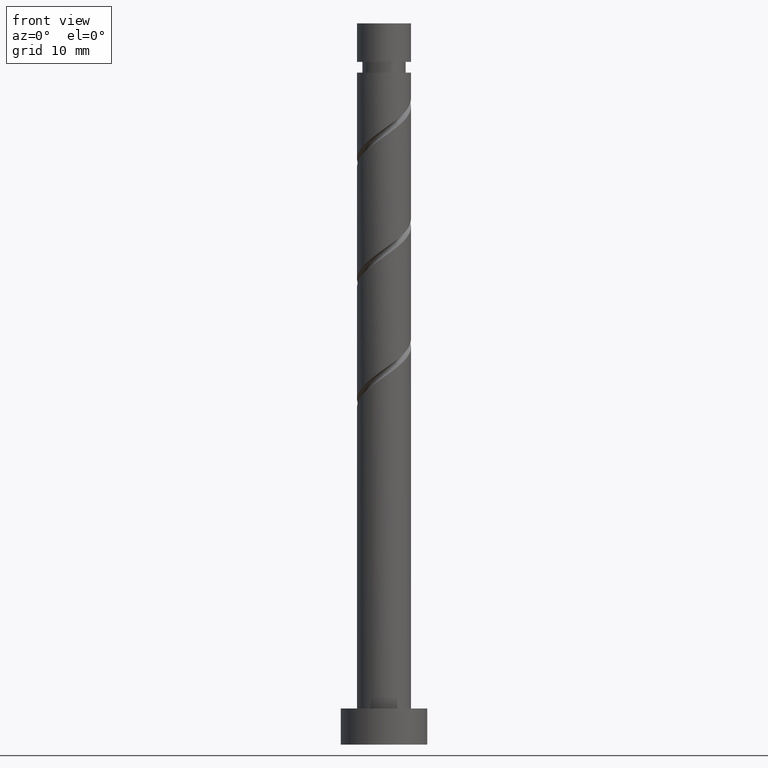
[diagram: clean part render]
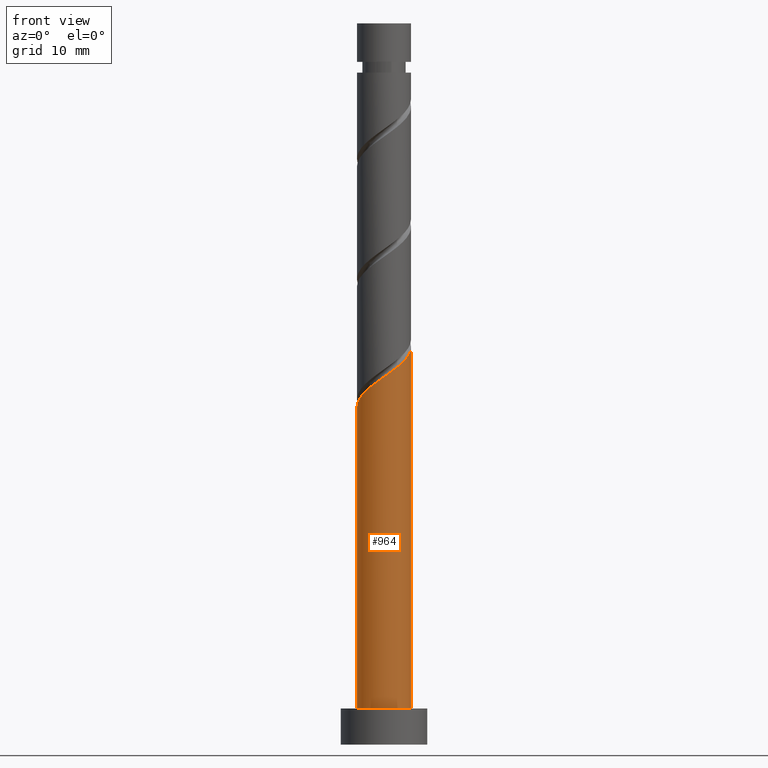
[diagram: same view with one face highlighted and labeled with its STEP entity id]
A machine part, front view. The second image highlights one B-rep face of the part: STEP entity #964.
In plain terms, the highlighted cylindrical surface (edge-blend (fillet) strip) has radius 3.75 mm, axis along (-0, -0, -1).
Its self-contained STEP definition (entity closure, byte-faithful):
#31 = CARTESIAN_POINT ( 'NONE',  ( 0.09823892372635467662, -3.806582347970903779, 51.04277048853528242 ) ) ;
#36 = DIRECTION ( 'NONE',  ( 0.000000000000000000, 0.000000000000000000, 1.000000000000000000 ) ) ;
#47 = CARTESIAN_POINT ( 'NONE',  ( -2.371568586908626930, -2.979158017898145605, 49.19091863668342768 ) ) ;
#62 = CARTESIAN_POINT ( 'NONE',  ( 3.750000000000000000, 4.592425496802573972E-16, 5.000000000000000000 ) ) ;
#148 = CARTESIAN_POINT ( 'NONE',  ( -2.809523069992834632, -2.483763297735530617, 48.72795567372047287 ) ) ;
#151 = EDGE_LOOP ( 'NONE', ( #860, #265, #1085, #873 ) ) ;
#155 = CARTESIAN_POINT ( 'NONE',  ( -3.247477553077039669, -1.988368577572917850, 48.26499271075751807 ) ) ;
#160 = CARTESIAN_POINT ( 'NONE',  ( -3.750000000000004441, -0.04838127874508439674, 46.84222927044185525 ) ) ;
#252 = CARTESIAN_POINT ( 'NONE',  ( 3.345716476803395345, -1.818213770397985929, 53.82054826631306810 ) ) ;
#259 = CARTESIAN_POINT ( 'NONE',  ( 0.000000000000000000, 0.000000000000000000, 5.000000000000000000 ) ) ;
#265 = ORIENTED_EDGE ( 'NONE', *, *, #711, .F. ) ;
#274 = CIRCLE ( 'NONE', #1332, 3.750000000000000000 ) ;
#300 = CARTESIAN_POINT ( 'NONE',  ( 0.000000000000000000, 0.000000000000000000, 100.0000000000000000 ) ) ;
#320 = VERTEX_POINT ( 'NONE', #62 ) ;
#365 = EDGE_CURVE ( 'NONE', #1029, #1429, #1469, .T. ) ;
#378 = CARTESIAN_POINT ( 'NONE',  ( 3.555763647822799189, -1.191236702264475644, 54.28351122927602290 ) ) ;
#410 = CYLINDRICAL_SURFACE ( 'NONE', #650, 3.750000000000000000 ) ;
#420 = DIRECTION ( 'NONE',  ( -0.000000000000000000, -0.000000000000000000, -1.000000000000000000 ) ) ;
#465 = LINE ( 'NONE', #880, #985 ) ;
#496 = CARTESIAN_POINT ( 'NONE',  ( 1.958160791039665671, -3.198141072003383378, 52.43165937742417526 ) ) ;
#504 = CARTESIAN_POINT ( 'NONE',  ( -3.748751808761160209, -0.09674645373329007758, 46.87610382186861813 ) ) ;
#523 = FACE_OUTER_BOUND ( 'NONE', #151, .T. ) ;
#605 = CARTESIAN_POINT ( 'NONE',  ( 3.750000000000004885, -2.599380179159503429E-15, 55.14154522984282636 ) ) ;
#650 = AXIS2_PLACEMENT_3D ( 'NONE', #300, #845, #1185 ) ;
#705 = CARTESIAN_POINT ( 'NONE',  ( 0.7462405778299654457, -3.675000000000005596, 51.50573345149824434 ) ) ;
#711 = EDGE_CURVE ( 'NONE', #1029, #1171, #1359, .T. ) ;
#717 = CARTESIAN_POINT ( 'NONE',  ( -3.731692798680119161, -0.7577525415975426837, 47.33906678483158004 ) ) ;
#778 = EDGE_CURVE ( 'NONE', #1429, #320, #274, .T. ) ;
#810 = CARTESIAN_POINT ( 'NONE',  ( 2.522079350145755239, -2.852864491977661565, 52.89462234038713007 ) ) ;
#827 = CARTESIAN_POINT ( 'NONE',  ( 1.394242231933574105, -3.543417652029107856, 51.96869641446121335 ) ) ;
#845 = DIRECTION ( 'NONE',  ( -0.000000000000000000, -0.000000000000000000, -1.000000000000000000 ) ) ;
#860 = ORIENTED_EDGE ( 'NONE', *, *, #1060, .F. ) ;
#873 = ORIENTED_EDGE ( 'NONE', *, *, #778, .T. ) ;
#880 = CARTESIAN_POINT ( 'NONE',  ( 3.750000000000000000, 4.592425496802573972E-16, 100.0000000000000000 ) ) ;
#883 = CARTESIAN_POINT ( 'NONE',  ( -3.750000000000000000, 0.000000000000000000, 100.0000000000000000 ) ) ;
#884 = VECTOR ( 'NONE', #420, 1000.000000000000000 ) ;
#950 = CARTESIAN_POINT ( 'NONE',  ( -3.750000000000004885, 2.554563279518822893E-15, 46.80821189650949066 ) ) ;
#956 = CARTESIAN_POINT ( 'NONE',  ( 2.933897913474575514, -2.335539131187822193, 53.35758530335009908 ) ) ;
#964 = ADVANCED_FACE ( 'NONE', ( #523 ), #410, .T. ) ;
#985 = VECTOR ( 'NONE', #1476, 1000.000000000000000 ) ;
#1004 = CARTESIAN_POINT ( 'NONE',  ( -3.750000000000004885, 2.554563279518822893E-15, 46.80821189650949066 ) ) ;
#1010 = CARTESIAN_POINT ( 'NONE',  ( -3.750000000000000000, 0.000000000000000000, 5.000000000000000000 ) ) ;
#1029 = VERTEX_POINT ( 'NONE', #1004 ) ;
#1052 = CARTESIAN_POINT ( 'NONE',  ( 3.750000000000004885, -0.6114538943267161519, 54.71162571747719738 ) ) ;
#1060 = EDGE_CURVE ( 'NONE', #1171, #320, #465, .T. ) ;
#1064 = CARTESIAN_POINT ( 'NONE',  ( -3.489585175878578749, -1.373060559585229878, 47.80202974779454195 ) ) ;
#1085 = ORIENTED_EDGE ( 'NONE', *, *, #365, .T. ) ;
#1169 = CARTESIAN_POINT ( 'NONE',  ( -0.5556872624040036790, -3.708599690773053403, 50.57980752557233473 ) ) ;
#1171 = VERTEX_POINT ( 'NONE', #1398 ) ;
#1185 = DIRECTION ( 'NONE',  ( -1.000000000000000000, 0.000000000000000000, 0.000000000000000000 ) ) ;
#1300 = CARTESIAN_POINT ( 'NONE',  ( -1.209613448534362590, -3.610617033575203472, 50.11684456260935150 ) ) ;
#1332 = AXIS2_PLACEMENT_3D ( 'NONE', #259, #36, #1416 ) ;
#1359 =( BOUNDED_CURVE ( )  B_SPLINE_CURVE ( 2, ( #950, #160, #504, #717, #1064, #155, #148, #47, #1406, #1300, #1169, #31, #705, #827, #496, #810, #956, #252, #378, #1052, #605 ),
 .UNSPECIFIED., .F., .T. ) 
 B_SPLINE_CURVE_WITH_KNOTS ( ( 3, 2, 2, 2, 2, 2, 2, 2, 2, 2, 3 ),
 ( 0.05452480538552920836, 0.05555555555555558023, 0.06944444444444441977, 0.08333333333333337034, 0.09722222222222220989, 0.1111111111111111605, 0.1250000000000000000, 0.1388888888888888395, 0.1527777777777777901, 0.1666666666666666297, 0.1795248053855290626 ),
 .UNSPECIFIED. ) 
 CURVE ( )  GEOMETRIC_REPRESENTATION_ITEM ( )  RATIONAL_B_SPLINE_CURVE ( ( 0.9071930855141262517, 0.9080659294509738633, 0.9090909090909138346, 0.8952797754656482976, 0.9090909090909138346, 0.8952797754656482976, 0.9090909090909138346, 0.8952797754656482976, 0.9090909090909138346, 0.8952797754656482976, 0.9090909090909138346, 0.8952797754656482976, 0.9090909090909138346, 0.8952797754656482976, 0.9090909090909138346, 0.8952797754656482976, 0.9090909090909138346, 0.8952797754656482976, 0.9090909090909138346, 0.8963047551055883799, 0.9071930855141261407 ) ) 
 REPRESENTATION_ITEM ( '' )  );
#1398 = CARTESIAN_POINT ( 'NONE',  ( 3.750000000000004885, -2.599380179159503429E-15, 55.14154522984282636 ) ) ;
#1406 = CARTESIAN_POINT ( 'NONE',  ( -1.790591017721495204, -3.294887525736672984, 49.65388159964638959 ) ) ;
#1416 = DIRECTION ( 'NONE',  ( 1.000000000000000000, 0.000000000000000000, 0.000000000000000000 ) ) ;
#1429 = VERTEX_POINT ( 'NONE', #1010 ) ;
#1469 = LINE ( 'NONE', #883, #884 ) ;
#1476 = DIRECTION ( 'NONE',  ( -0.000000000000000000, -0.000000000000000000, -1.000000000000000000 ) ) ;